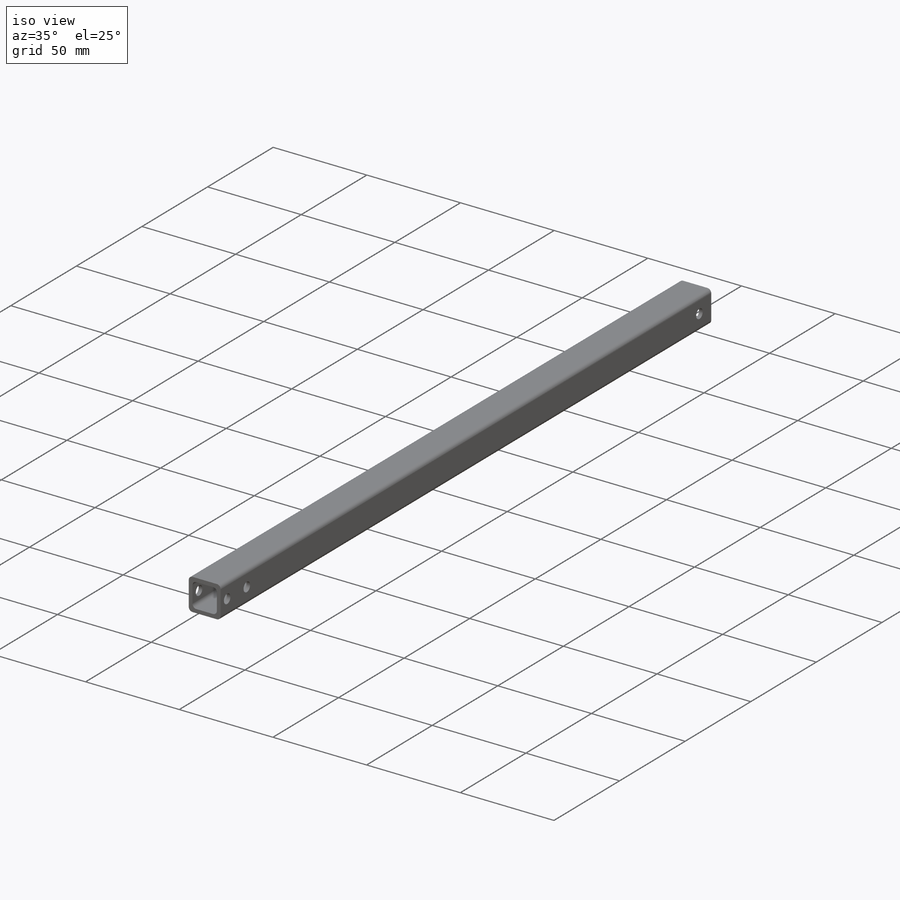
[diagram: iso view]
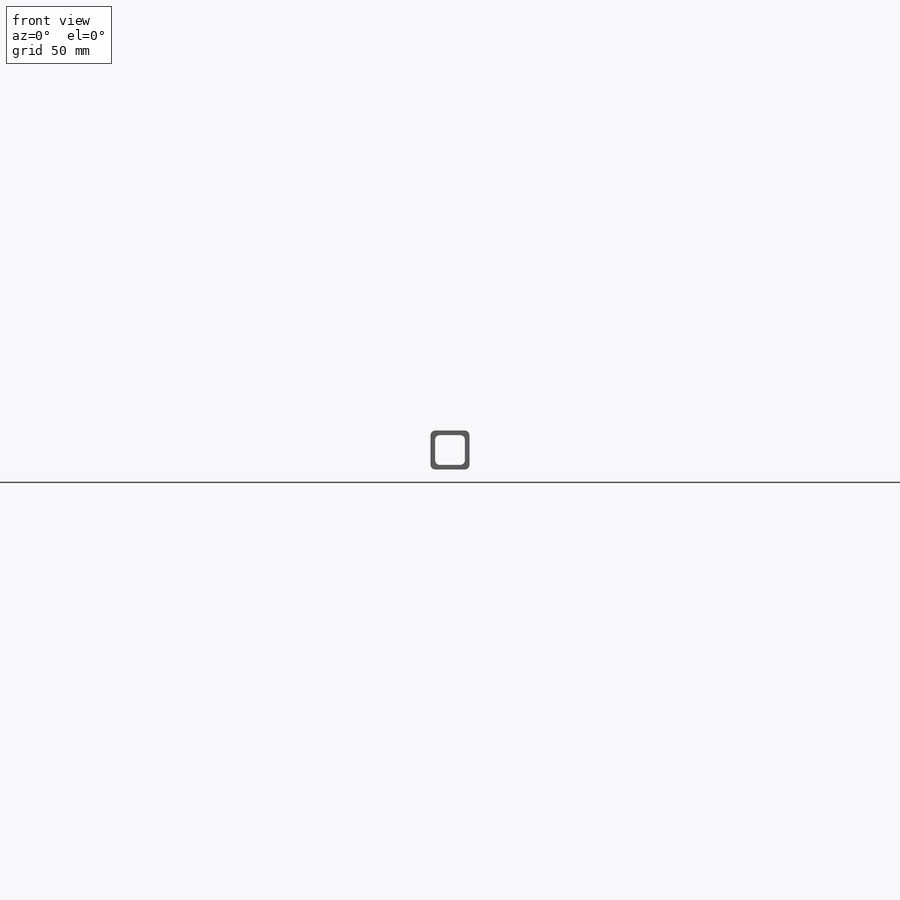
[diagram: front view]
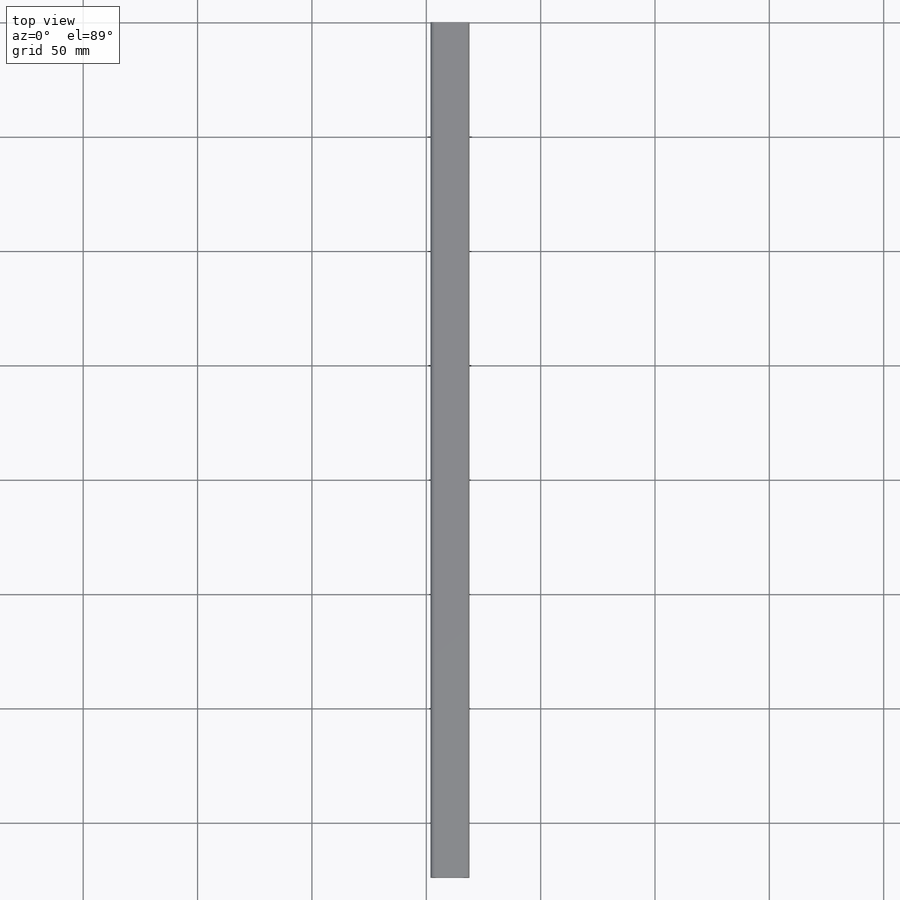
[diagram: top view]
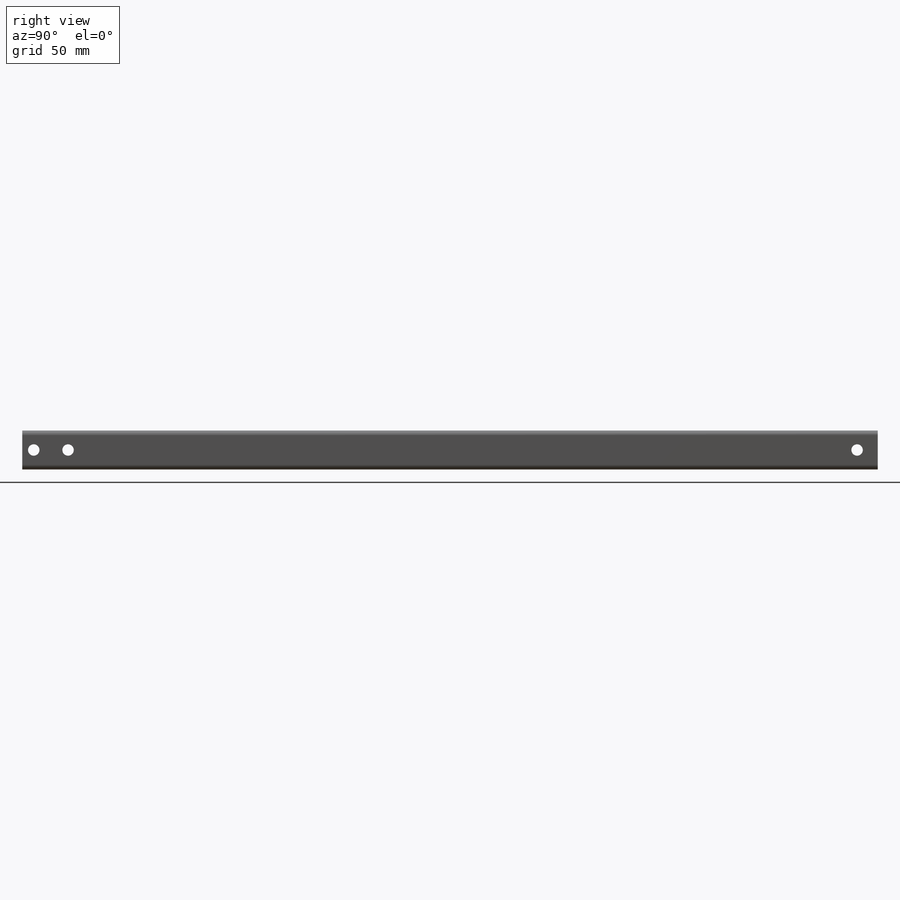
[diagram: right view]
SOLIDWORKS PART (.sldprt)
format: sldprt  version: not decoded by parser v0  size: 176,640 bytes
history: native  units: mm
features: sketch x3, fillet x2, cut_extrude x2, material x1, extrude x1 (+14 scaffold rows collapsed)
feature tree (23):
  scaffold x14  (default folders/planes/origin — collapsed)
  material  "Material <not specified>"
  sketch  "Sketch1"  dims[D1=17.0mm D2=17.0mm]
  extrude  "Extrude1"  Depth=374mm
  fillet  "Fillet2"  Radius=2mm
  sketch  "Sketch2"  dims[D1=13.0mm D2=13.0mm D3=2.0mm D4=2.0mm D5=2.0mm]
  cut_extrude  "Extrude2"  [1 undecoded]
  fillet  "Fillet3"  Radius=2mm
  sketch  "Sketch3"  dims[D1=5.0mm D2=5.0mm D3=5.0mm D4=5.0mm D5=15.0mm D6=9.0mm]
  cut_extrude  "Extrude3"  [1 undecoded]
decode coverage: 6 of 8 modeling features carry decoded parameters
note: 2 parameter values undecoded
note: suppression state not decoded; provenance and decode notes live in map.json
